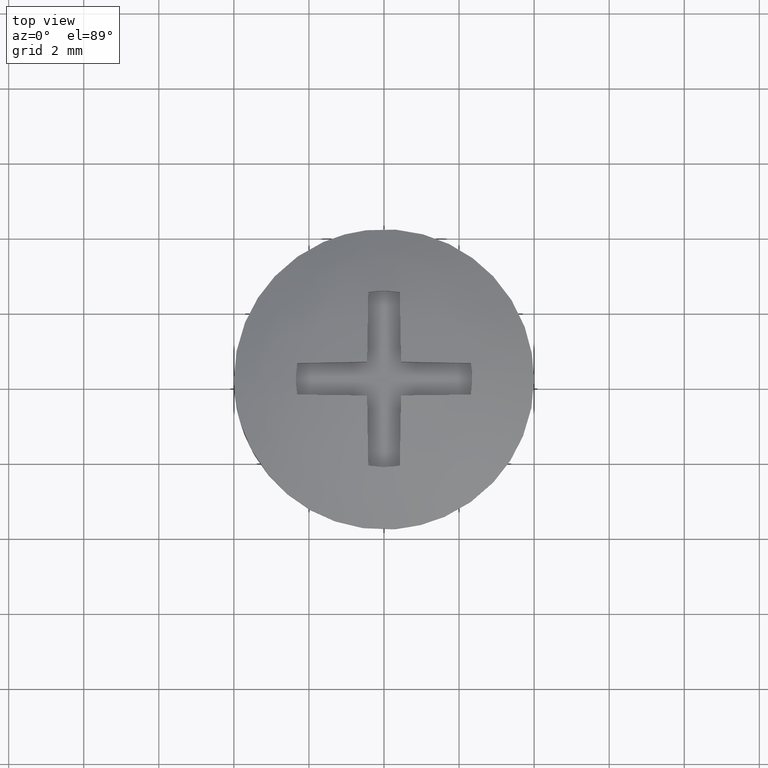
[diagram: clean part render]
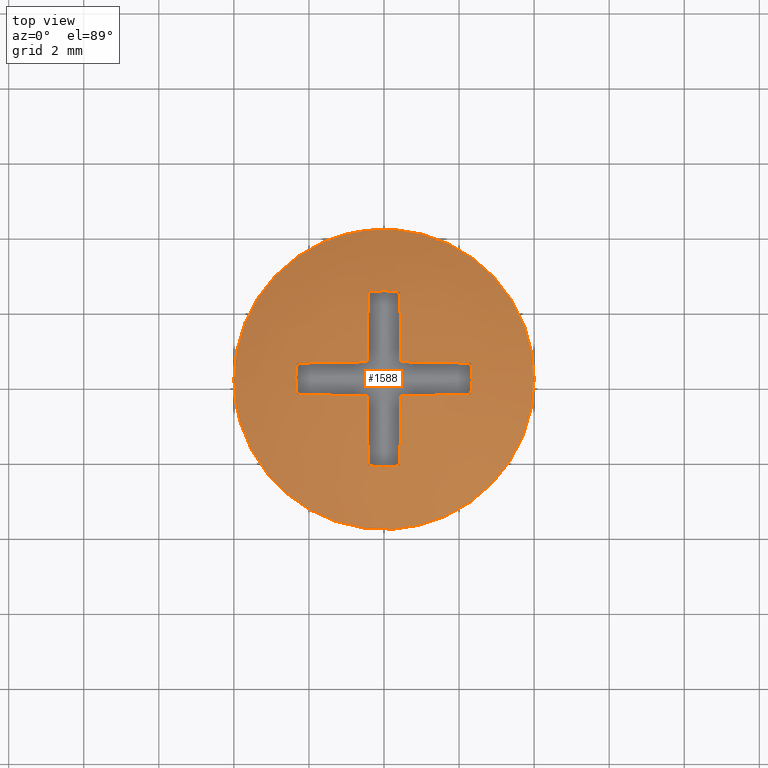
[diagram: same view with one face highlighted and labeled with its STEP entity id]
A machine part, top view. The second image highlights one B-rep face of the part: STEP entity #1588.
In plain terms, the highlighted face is a freeform B-spline surface patch.
Its self-contained STEP definition (entity closure, byte-faithful):
#66=CARTESIAN_POINT('',(-0.472132317623967,3.972038654725475,-0.000054549080299));
#67=VERTEX_POINT('',#66);
#68=CARTESIAN_POINT('',(4.0,0.0,-0.000054549080193));
#69=VERTEX_POINT('',#68);
#70=CARTESIAN_POINT('',(-0.472132317623967,3.972038654725475,-0.000054549080299));
#71=CARTESIAN_POINT('',(-0.236894143680183,4.000000000000000,-0.000054549080193));
#72=CARTESIAN_POINT('',(0.0,4.0,-0.000054549080193));
#73=CARTESIAN_POINT('',(4.000000000000000,4.000000000000000,-0.000054549080193));
#74=CARTESIAN_POINT('',(4.0,0.0,-0.000054549080193));
#82=(BOUNDED_CURVE()B_SPLINE_CURVE(2,(#70,#71,#72,#73,#74),.UNSPECIFIED.,.F.,.U.)B_SPLINE_CURVE_WITH_KNOTS((3,2,3),(0.229562670131227,0.250000000000000,0.500000000000000),.UNSPECIFIED.)CURVE()GEOMETRIC_REPRESENTATION_ITEM()RATIONAL_B_SPLINE_CURVE((0.956027139562837,0.976056178683131,1.0,0.707106781186548,1.0))REPRESENTATION_ITEM(''));
#83=EDGE_CURVE('',#67,#69,#82,.T.);
#85=CARTESIAN_POINT('',(0.244189353118884,-3.992539487569309,-0.000054549080193));
#86=VERTEX_POINT('',#85);
#87=CARTESIAN_POINT('',(4.0,0.0,-0.000054549080193));
#88=CARTESIAN_POINT('',(4.0,-3.762828804646125,-0.000054549080193));
#89=CARTESIAN_POINT('',(0.244189353118884,-3.992539487569309,-0.000054549080193));
#97=(BOUNDED_CURVE()B_SPLINE_CURVE(2,(#87,#88,#89),.UNSPECIFIED.,.F.,.U.)B_SPLINE_CURVE_WITH_KNOTS((3,3),(0.500000000000000,0.739333169902046),.UNSPECIFIED.)CURVE()GEOMETRIC_REPRESENTATION_ITEM()RATIONAL_B_SPLINE_CURVE((1.0,0.719603749994252,0.976072486728681))REPRESENTATION_ITEM(''));
#98=EDGE_CURVE('',#69,#86,#97,.T.);
#180=CARTESIAN_POINT('',(-4.0,0.0,-0.000054549080193));
#181=VERTEX_POINT('',#180);
#182=CARTESIAN_POINT('',(-4.0,0.0,-0.000054549080193));
#183=CARTESIAN_POINT('',(-4.0,3.552702266053001,-0.000054549080193));
#184=CARTESIAN_POINT('',(-0.472132317623967,3.972038654725475,-0.000054549080299));
#192=(BOUNDED_CURVE()B_SPLINE_CURVE(2,(#182,#183,#184),.UNSPECIFIED.,.F.,.U.)B_SPLINE_CURVE_WITH_KNOTS((3,3),(0.0,0.229562670131227),.UNSPECIFIED.)CURVE()GEOMETRIC_REPRESENTATION_ITEM()RATIONAL_B_SPLINE_CURVE((1.0,0.731050602503416,0.956027139562837))REPRESENTATION_ITEM(''));
#193=EDGE_CURVE('',#181,#67,#192,.T.);
#242=CARTESIAN_POINT('',(0.244189353118884,-3.992539487569309,-0.000054549080193));
#243=CARTESIAN_POINT('',(0.122208643947900,-4.000000000000001,-0.000054549080193));
#244=CARTESIAN_POINT('',(0.0,-4.0,-0.000054549080193));
#245=CARTESIAN_POINT('',(-4.000000000000000,-4.000000000000000,-0.000054549080193));
#246=CARTESIAN_POINT('',(-4.0,0.0,-0.000054549080193));
#254=(BOUNDED_CURVE()B_SPLINE_CURVE(2,(#242,#243,#244,#245,#246),.UNSPECIFIED.,.F.,.U.)B_SPLINE_CURVE_WITH_KNOTS((3,2,3),(0.739333169902046,0.750000000000000,1.0),.UNSPECIFIED.)CURVE()GEOMETRIC_REPRESENTATION_ITEM()RATIONAL_B_SPLINE_CURVE((0.976072486728681,0.987503031192296,1.0,0.707106781186548,1.0))REPRESENTATION_ITEM(''));
#255=EDGE_CURVE('',#86,#181,#254,.T.);
#1153=CARTESIAN_POINT('',(-2.312163372429150,0.420000641900767,0.599434616879191));
#1154=VERTEX_POINT('',#1153);
#1161=CARTESIAN_POINT('',(-0.452394242445018,0.452593227179430,0.877989811291734));
#1162=VERTEX_POINT('',#1161);
#1168=CARTESIAN_POINT('',(-2.312163372429149,0.420000641900766,0.599434616879186));
#1169=CARTESIAN_POINT('',(-1.396390394820761,0.436049627975103,0.832956929237539));
#1170=CARTESIAN_POINT('',(-0.452394242445018,0.452593227179430,0.877989811291734));
#1178=(BOUNDED_CURVE()B_SPLINE_CURVE(2,(#1168,#1169,#1170),.UNSPECIFIED.,.F.,.U.)CURVE()GEOMETRIC_REPRESENTATION_ITEM()QUASI_UNIFORM_CURVE()RATIONAL_B_SPLINE_CURVE((1.0,0.994904774247510,1.0))REPRESENTATION_ITEM(''));
#1179=EDGE_CURVE('',#1154,#1162,#1178,.T.);
#1198=CARTESIAN_POINT('',(-2.312163372429150,-0.420000641900767,0.599434616879058));
#1199=VERTEX_POINT('',#1198);
#1200=CARTESIAN_POINT('',(-2.312163372429150,0.420000641900767,0.599434616879191));
#1201=CARTESIAN_POINT('',(-2.388455792463351,-1.084202E-016,0.599434616879099));
#1202=CARTESIAN_POINT('',(-2.312163372429150,-0.420000641900767,0.599434616879058));
#1210=(BOUNDED_CURVE()B_SPLINE_CURVE(2,(#1200,#1201,#1202),.UNSPECIFIED.,.F.,.U.)CURVE()GEOMETRIC_REPRESENTATION_ITEM()QUASI_UNIFORM_CURVE()RATIONAL_B_SPLINE_CURVE((1.0,0.983899307416660,1.0))REPRESENTATION_ITEM(''));
#1211=EDGE_CURVE('',#1154,#1199,#1210,.T.);
#1228=CARTESIAN_POINT('',(-0.452408359943641,-0.452592979769450,0.877989137812526));
#1229=VERTEX_POINT('',#1228);
#1237=CARTESIAN_POINT('',(-0.452408359943641,-0.452592979769450,0.877989137812526));
#1238=CARTESIAN_POINT('',(-1.396397312848710,-0.436049506736263,0.832955165138878));
#1239=CARTESIAN_POINT('',(-2.312163372429150,-0.420000641900767,0.599434616879058));
#1247=(BOUNDED_CURVE()B_SPLINE_CURVE(2,(#1237,#1238,#1239),.UNSPECIFIED.,.F.,.U.)CURVE()GEOMETRIC_REPRESENTATION_ITEM()QUASI_UNIFORM_CURVE()RATIONAL_B_SPLINE_CURVE((1.0,0.994904850641644,1.0))REPRESENTATION_ITEM(''));
#1248=EDGE_CURVE('',#1229,#1199,#1247,.T.);
#1258=CARTESIAN_POINT('',(-0.419997141433095,-2.312164008280560,0.599434616879191));
#1259=VERTEX_POINT('',#1258);
#1267=CARTESIAN_POINT('',(-0.419997141433095,-2.312164008280560,0.599434616879188));
#1268=CARTESIAN_POINT('',(-0.435956820886754,-1.396488544653940,0.832936204263916));
#1269=CARTESIAN_POINT('',(-0.452408359943641,-0.452592979769450,0.877989137812526));
#1277=(BOUNDED_CURVE()B_SPLINE_CURVE(2,(#1267,#1268,#1269),.UNSPECIFIED.,.F.,.U.)CURVE()GEOMETRIC_REPRESENTATION_ITEM()QUASI_UNIFORM_CURVE()RATIONAL_B_SPLINE_CURVE((1.0,0.994905867918749,1.0))REPRESENTATION_ITEM(''));
#1278=EDGE_CURVE('',#1259,#1229,#1277,.T.);
#1297=CARTESIAN_POINT('',(0.419997141433088,-2.312164008280560,0.599434616879058));
#1298=VERTEX_POINT('',#1297);
#1299=CARTESIAN_POINT('',(-0.419997141433095,-2.312164008280560,0.599434616879191));
#1300=CARTESIAN_POINT('',(-2.927346E-015,-2.388455135631491,0.599434616879099));
#1301=CARTESIAN_POINT('',(0.419997141433088,-2.312164008280560,0.599434616879058));
#1309=(BOUNDED_CURVE()B_SPLINE_CURVE(2,(#1299,#1300,#1301),.UNSPECIFIED.,.F.,.U.)CURVE()GEOMETRIC_REPRESENTATION_ITEM()QUASI_UNIFORM_CURVE()RATIONAL_B_SPLINE_CURVE((1.0,0.983899577991728,1.0))REPRESENTATION_ITEM(''));
#1310=EDGE_CURVE('',#1259,#1298,#1309,.T.);
#1327=CARTESIAN_POINT('',(0.452439928843953,-0.450781736159718,0.878075413493905));
#1328=VERTEX_POINT('',#1327);
#1336=CARTESIAN_POINT('',(0.452439928843953,-0.450781736159718,0.878075413493905));
#1337=CARTESIAN_POINT('',(0.435972290710727,-1.395600974306397,0.833162538913365));
#1338=CARTESIAN_POINT('',(0.419997141433088,-2.312164008280560,0.599434616879058));
#1346=(BOUNDED_CURVE()B_SPLINE_CURVE(2,(#1336,#1337,#1338),.UNSPECIFIED.,.F.,.U.)CURVE()GEOMETRIC_REPRESENTATION_ITEM()QUASI_UNIFORM_CURVE()RATIONAL_B_SPLINE_CURVE((1.0,0.994896063094345,1.0))REPRESENTATION_ITEM(''));
#1347=EDGE_CURVE('',#1328,#1298,#1346,.T.);
#1357=CARTESIAN_POINT('',(2.312163378926475,-0.420000606132073,0.599434616879191));
#1358=VERTEX_POINT('',#1357);
#1366=CARTESIAN_POINT('',(2.312163378926475,-0.420000606132073,0.599434616879191));
#1367=CARTESIAN_POINT('',(1.396417165324461,-0.435157538885680,0.832991535529156));
#1368=CARTESIAN_POINT('',(0.452439928843953,-0.450781736159718,0.878075413493905));
#1376=(BOUNDED_CURVE()B_SPLINE_CURVE(2,(#1366,#1367,#1368),.UNSPECIFIED.,.F.,.U.)CURVE()GEOMETRIC_REPRESENTATION_ITEM()QUASI_UNIFORM_CURVE()RATIONAL_B_SPLINE_CURVE((1.0,0.994905237488468,1.0))REPRESENTATION_ITEM(''));
#1377=EDGE_CURVE('',#1358,#1328,#1376,.T.);
#1396=CARTESIAN_POINT('',(2.312163372429150,0.420000641900767,0.599434616879058));
#1397=VERTEX_POINT('',#1396);
#1398=CARTESIAN_POINT('',(2.312163378926475,-0.420000606132073,0.599434616879191));
#1399=CARTESIAN_POINT('',(2.388455789107495,0.000000018474462,0.599434616879099));
#1400=CARTESIAN_POINT('',(2.312163372429150,0.420000641900767,0.599434616879058));
#1408=(BOUNDED_CURVE()B_SPLINE_CURVE(2,(#1398,#1399,#1400),.UNSPECIFIED.,.F.,.U.)CURVE()GEOMETRIC_REPRESENTATION_ITEM()QUASI_UNIFORM_CURVE()RATIONAL_B_SPLINE_CURVE((1.0,0.983899308799070,1.0))REPRESENTATION_ITEM(''));
#1409=EDGE_CURVE('',#1358,#1397,#1408,.T.);
#1426=CARTESIAN_POINT('',(0.452425794675152,0.452592674224370,0.877988306054220));
#1427=VERTEX_POINT('',#1426);
#1435=CARTESIAN_POINT('',(0.452425794675152,0.452592674224370,0.877988306054220));
#1436=CARTESIAN_POINT('',(1.396405856426563,0.436049357009370,0.832952986524636));
#1437=CARTESIAN_POINT('',(2.312163372429150,0.420000641900767,0.599434616879058));
#1445=(BOUNDED_CURVE()B_SPLINE_CURVE(2,(#1435,#1436,#1437),.UNSPECIFIED.,.F.,.U.)CURVE()GEOMETRIC_REPRESENTATION_ITEM()QUASI_UNIFORM_CURVE()RATIONAL_B_SPLINE_CURVE((1.0,0.994904944985566,1.0))REPRESENTATION_ITEM(''));
#1446=EDGE_CURVE('',#1427,#1397,#1445,.T.);
#1456=CARTESIAN_POINT('',(0.420014626196996,2.312160832161250,0.599434616879191));
#1457=VERTEX_POINT('',#1456);
#1465=CARTESIAN_POINT('',(0.420014626196996,2.312160832161250,0.599434616879191));
#1466=CARTESIAN_POINT('',(0.435974281737292,1.396486740547515,0.832935501751080));
#1467=CARTESIAN_POINT('',(0.452425794675152,0.452592674224370,0.877988306054220));
#1475=(BOUNDED_CURVE()B_SPLINE_CURVE(2,(#1465,#1466,#1467),.UNSPECIFIED.,.F.,.U.)CURVE()GEOMETRIC_REPRESENTATION_ITEM()QUASI_UNIFORM_CURVE()RATIONAL_B_SPLINE_CURVE((1.0,0.994905883067991,1.0))REPRESENTATION_ITEM(''));
#1476=EDGE_CURVE('',#1457,#1427,#1475,.T.);
#1495=CARTESIAN_POINT('',(-0.420014611924039,2.312160834753995,0.599434616879058));
#1496=VERTEX_POINT('',#1495);
#1497=CARTESIAN_POINT('',(0.420014626196996,2.312160832161250,0.599434616879191));
#1498=CARTESIAN_POINT('',(7.371971E-009,2.388458415213968,0.599434616879099));
#1499=CARTESIAN_POINT('',(-0.420014611924039,2.312160834753995,0.599434616879058));
#1507=(BOUNDED_CURVE()B_SPLINE_CURVE(2,(#1497,#1498,#1499),.UNSPECIFIED.,.F.,.U.)CURVE()GEOMETRIC_REPRESENTATION_ITEM()QUASI_UNIFORM_CURVE()RATIONAL_B_SPLINE_CURVE((1.0,0.983898227003244,1.0))REPRESENTATION_ITEM(''));
#1508=EDGE_CURVE('',#1457,#1496,#1507,.T.);
#1528=CARTESIAN_POINT('',(-0.452394242445018,0.452593227179430,0.877989811291734));
#1529=CARTESIAN_POINT('',(-0.435958736481214,1.396487089235294,0.832936135225205));
#1530=CARTESIAN_POINT('',(-0.420014611924039,2.312160834753995,0.599434616879058));
#1538=(BOUNDED_CURVE()B_SPLINE_CURVE(2,(#1528,#1529,#1530),.UNSPECIFIED.,.F.,.U.)CURVE()GEOMETRIC_REPRESENTATION_ITEM()QUASI_UNIFORM_CURVE()RATIONAL_B_SPLINE_CURVE((1.0,0.994905889874831,1.0))REPRESENTATION_ITEM(''));
#1539=EDGE_CURVE('',#1162,#1496,#1538,.T.);
#1544=CARTESIAN_POINT('',(-4.117937225131175,-4.117846320305652,-1.138196276037541));
#1545=CARTESIAN_POINT('',(-2.177791912761157,-4.355487674569528,-0.177914875134569));
#1546=CARTESIAN_POINT('',(2.177792043519675,-4.355487674569528,-0.177914875134569));
#1547=CARTESIAN_POINT('',(4.117937445399071,-4.117846293325838,-1.138196385059875));
#1548=CARTESIAN_POINT('',(-4.355572727909416,-2.177738288600811,-0.177959718322902));
#1549=CARTESIAN_POINT('',(-2.311163519536984,-2.311112499838286,0.899939999999995));
#1550=CARTESIAN_POINT('',(2.311163658303371,-2.311112499838286,0.899939999999995));
#1551=CARTESIAN_POINT('',(4.355572959241584,-2.177738273509045,-0.177959840291091));
#1552=CARTESIAN_POINT('',(-4.355572727909416,2.177750095796711,-0.177959718322897));
#1553=CARTESIAN_POINT('',(-2.311163519536984,2.311125030158470,0.899940000000000));
#1554=CARTESIAN_POINT('',(2.311163658303371,2.311125030158470,0.899940000000000));
#1555=CARTESIAN_POINT('',(4.355572959241584,2.177750080704863,-0.177959840291085));
#1556=CARTESIAN_POINT('',(-4.117934788904043,4.117866210134335,-1.138206120334058));
#1557=CARTESIAN_POINT('',(-2.177790549995833,4.355508563536255,-0.177925888447537));
#1558=CARTESIAN_POINT('',(2.177790680754269,4.355508563536255,-0.177925888447537));
#1559=CARTESIAN_POINT('',(4.117935009171823,4.117866183154406,-1.138206229356264));
#1567=(BOUNDED_SURFACE()B_SPLINE_SURFACE(2,2,((#1544,#1548,#1552,#1556),(#1545,#1549,#1553,#1557),(#1546,#1550,#1554,#1558),(#1547,#1551,#1555,#1559)),.UNSPECIFIED.,.F.,.F.,.U.)B_SPLINE_SURFACE_WITH_KNOTS((3,1,3),(3,1,3),(1.309086001050472,5.704697077702027,10.100308418273929),(1.309183035618067,5.704697077702027,10.100234951251741),.UNSPECIFIED.)GEOMETRIC_REPRESENTATION_ITEM()RATIONAL_B_SPLINE_SURFACE(((1.122486037636653,1.061244370793135,1.061244370793135,1.122486701714906),(1.061241666843518,1.0,1.0,1.061242330921771),(1.061241666843518,1.0,1.0,1.061242330921771),(1.122486044991096,1.061244378147578,1.061244378147578,1.122486709069349)))REPRESENTATION_ITEM('')SURFACE());
#1568=ORIENTED_EDGE('',*,*,#83,.F.);
#1569=ORIENTED_EDGE('',*,*,#193,.F.);
#1570=ORIENTED_EDGE('',*,*,#255,.F.);
#1571=ORIENTED_EDGE('',*,*,#98,.F.);
#1572=EDGE_LOOP('',(#1568,#1569,#1570,#1571));
#1573=FACE_OUTER_BOUND('',#1572,.T.);
#1574=ORIENTED_EDGE('',*,*,#1179,.T.);
#1575=ORIENTED_EDGE('',*,*,#1539,.T.);
#1576=ORIENTED_EDGE('',*,*,#1508,.F.);
#1577=ORIENTED_EDGE('',*,*,#1476,.T.);
#1578=ORIENTED_EDGE('',*,*,#1446,.T.);
#1579=ORIENTED_EDGE('',*,*,#1409,.F.);
#1580=ORIENTED_EDGE('',*,*,#1377,.T.);
#1581=ORIENTED_EDGE('',*,*,#1347,.T.);
#1582=ORIENTED_EDGE('',*,*,#1310,.F.);
#1583=ORIENTED_EDGE('',*,*,#1278,.T.);
#1584=ORIENTED_EDGE('',*,*,#1248,.T.);
#1585=ORIENTED_EDGE('',*,*,#1211,.F.);
#1586=EDGE_LOOP('',(#1574,#1575,#1576,#1577,#1578,#1579,#1580,#1581,#1582,#1583,#1584,#1585));
#1587=FACE_BOUND('',#1586,.T.);
#1588=ADVANCED_FACE('',(#1573,#1587),#1567,.T.);